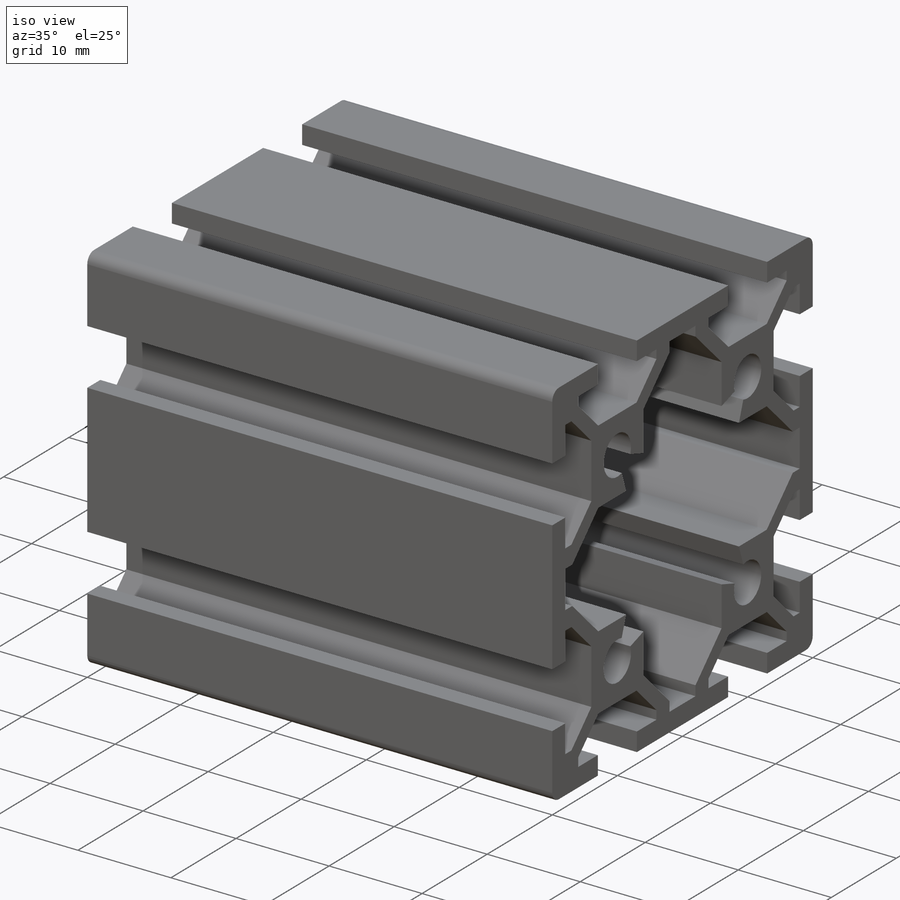
[diagram: iso view]
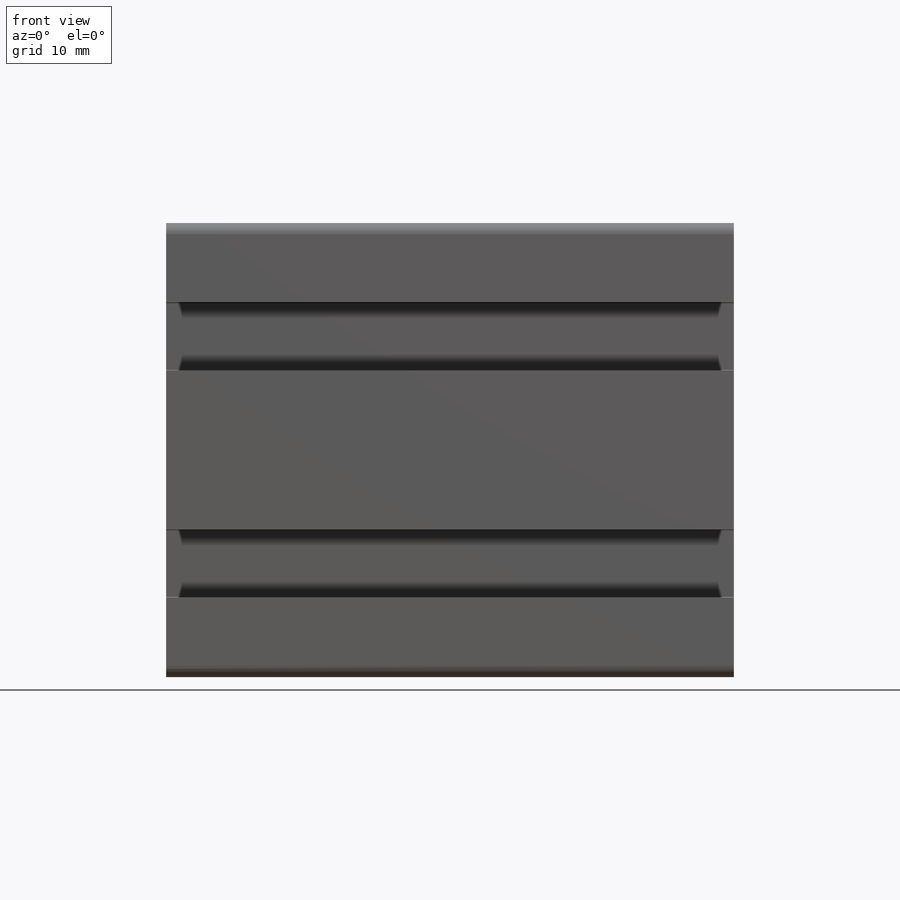
[diagram: front view]
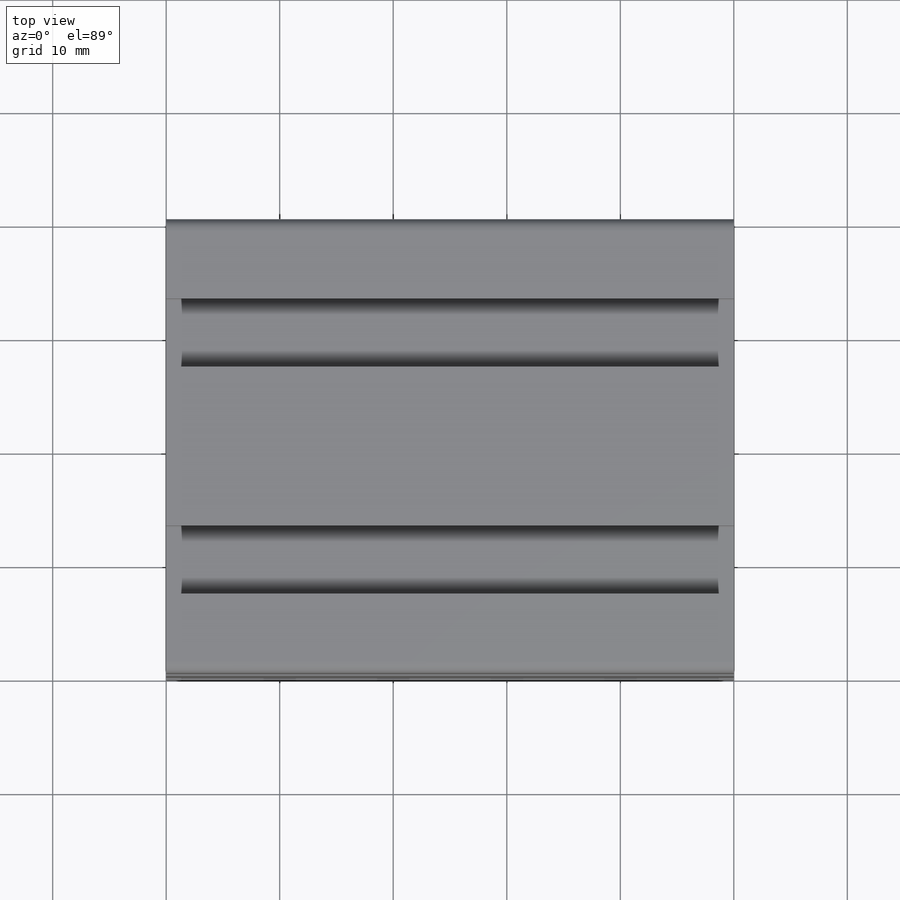
[diagram: top view]
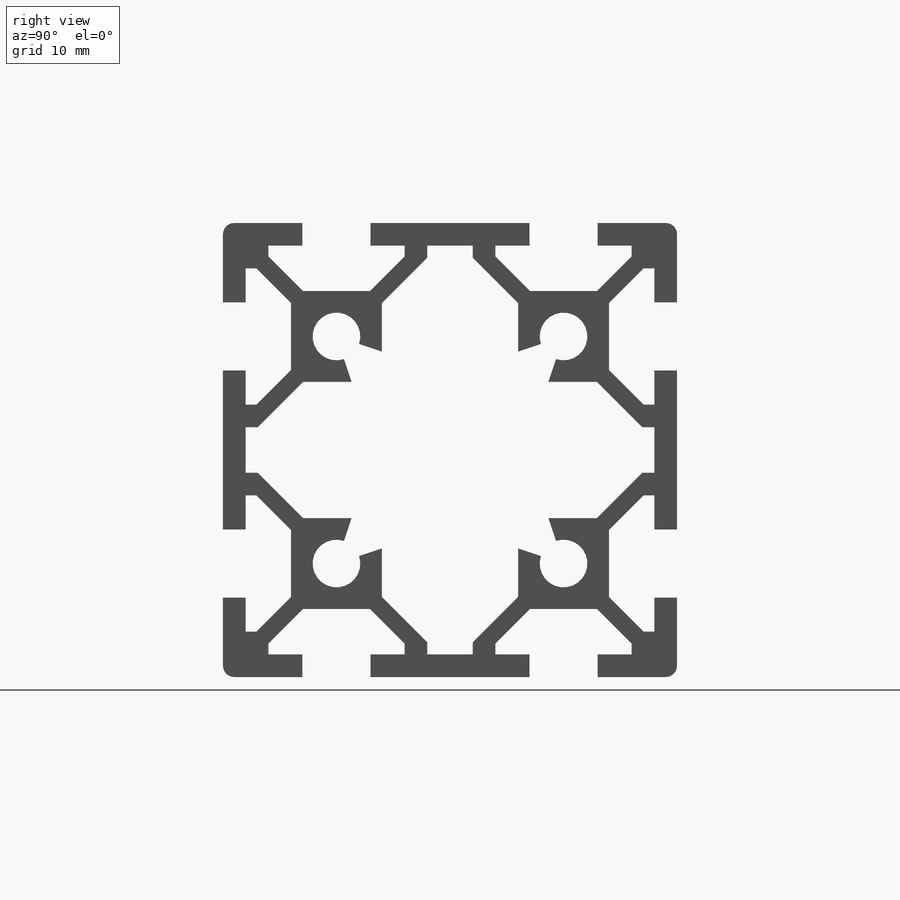
[diagram: right view]
SOLIDWORKS PART (.sldprt)
format: sldprt  version: not decoded by parser v0  size: 4,058,112 bytes
history: native  units: mm
features: sketch x97, cut_extrude x60, thread x48, plane x16, pattern_linear x12, cut_revolve x10, extrude x9, hole x8, material x1, chamfer x1 (+79 scaffold rows collapsed; 68 parser-record rows omitted)
feature tree (409):
  scaffold x79  (default folders/planes/origin — collapsed)
  material  "Material <not specified>"
  sketch  "Sketch1"  dims[c1.D3=4.2mm c1.A=30.0mm c1.B=30.0mm c2.A=30.0mm c2.B=30.0mm c3.A=30.0mm c3.B=30.0mm c3.D1=90.0mm c3.D2=90.0mm c3.D3=90.0mm c4.A=30.0mm c5.A=30.0mm c5.B=90.0mm c6.A=30.0mm c6.B=90.0mm c7.A=30.0mm c7.B=90.0mm c7.D1=83.2mm c7.D2=23.2mm c8.A=30.0mm c8.B=30.0mm c9.A=40.0mm c9.B=40.0mm c10.A=40.0mm c10.B=80.0mm c11.A=80.0mm c11.B=80.0mm c12.A=60.0mm c12.B=60.0mm c13.A=40.0mm c13.B=40.0mm]
  extrude  "Boss-Extrude1"  [1 undecoded]
  sketch  "Sketch2"  dims[A=40.0mm D1=~206.895348mm]
  sketch  "Sketch3"  dims[B=40.0mm D1=~204.200321mm]
  plane  "Plane1"  Offset=20mm FIX_1=20mm
  plane  "Plane2"  Offset=20mm FIX_2=20mm
  plane  "Plane3"  Offset=0mm FIX_3=0mm
  plane  "Plane4"
  plane  "Plane5"  Offset=20mm FIX_4=20mm
  plane  "Plane6"  Offset=20mm FIX_5=20mm
  plane  "Plane7"  Offset=20mm XA=20mm
  plane  "Plane8"  Offset=45mm XB=45mm
  plane  "Plane9"  Offset=70mm XC=70mm
  plane  "Plane10"  Offset=95mm XD=95mm
  plane  "Plane11"  Offset=120mm XE=120mm
  plane  "Plane12"  Offset=20mm YA=20mm
  plane  "Plane13"  Offset=45mm YB=45mm
  plane  "Plane14"  Offset=70mm YC=70mm
  plane  "Plane15"  Offset=95mm YD=95mm
  plane  "Plane16"  Offset=120mm YE=120mm
  parser-record x68  (decoder bookkeeping rows leaked as tree rows — omitted from the tree; the rows remain in map.json)
  chamfer  "Chamfer1"  Distance=0.3mm Angle=45deg FIX_6=0.3mm FIX_7=45deg
  sketch  "Sketch4"  dims[c1.FIX_8=10.0mm c2.FIX_8=4.2mm c2.FIX_9=30.0mm c2.FIX_10=30.0mm c3.FIX_9=10.0mm c3.FIX_10=20.0mm c3.FIX_11=10.0mm c3.FIX_12=20.0mm]
  extrude  "Boss-Extrude2"  Depth=15mm FIX_13=15mm
  hole  "Tapped Hole1"  Diameter=4.2mm Depth=15mm
  sketch  "Sketch6"  dims[FIX_14=20.0mm FIX_15=20.0mm FIX_16=10.0mm]
  sketch  "Sketch5"  dims[hole-wizard template sketch: 61 standard entries collapsed; hole parameters above]
  thread  "Hole Thread1"  Diameter=15mm NFIX_2=15mm NFIX_1=5mm  [1 undecoded]
  thread  "Hole Thread2"  Diameter=15mm NFIX_2=15mm NFIX_1=5mm  [1 undecoded]
  thread  "Hole Thread3"  Diameter=15mm NFIX_2=15mm NFIX_1=5mm  [1 undecoded]
  thread  "Hole Thread4"  Diameter=15mm NFIX_2=15mm NFIX_1=5mm  [1 undecoded]
  sketch  "Sketch7"  dims[FIX_17=4.2mm FIX_15=30.0mm FIX_16=30.0mm FIX_18=10.0mm FIX_19=20.0mm FIX_20=20.0mm FIX_21=10.0mm]
  extrude  "Boss-Extrude3"  Depth=15mm FIX_22=15mm
  hole  "Tapped Hole2"  Diameter=4.2mm Depth=15mm
  sketch  "Sketch9"  dims[FIX_23=20.0mm FIX_24=10.0mm FIX_25=20.0mm]
  sketch  "Sketch8"  dims[hole-wizard template sketch: 61 standard entries collapsed; hole parameters above]
  thread  "Hole Thread5"  Diameter=15mm NFIX_2=15mm NFIX_1=5mm  [1 undecoded]
  thread  "Hole Thread6"  Diameter=15mm NFIX_2=15mm NFIX_1=5mm  [1 undecoded]
  thread  "Hole Thread7"  Diameter=15mm NFIX_2=15mm NFIX_1=5mm  [1 undecoded]
  thread  "Hole Thread8"  Diameter=15mm NFIX_2=15mm NFIX_1=5mm  [1 undecoded]
  sketch  "Sketch10"  dims[FIX_26=4.2mm FIX_21=30.0mm FIX_22=30.0mm FIX_27=10.0mm FIX_28=20.0mm FIX_29=20.0mm FIX_30=10.0mm]
  extrude  "Boss-Extrude4"  Depth=15mm FIX_31=15mm
  sketch  "Sketch11"  dims[FIX_32=4.2mm FIX_25=30.0mm FIX_26=30.0mm FIX_33=20.0mm FIX_34=20.0mm FIX_35=10.0mm FIX_36=10.0mm]
  extrude  "Boss-Extrude5"  Depth=15mm FIX_37=15mm
  hole  "Tapped Hole3"  Diameter=4.2mm Depth=15mm
  sketch  "Sketch13"  dims[FIX_38=20.0mm D2=40.0mm D3=~14.267346mm FIX_39=20.0mm FIX_40=10.0mm]
  sketch  "Sketch12"  dims[hole-wizard template sketch: 61 standard entries collapsed; hole parameters above]
  thread  "Hole Thread9"  Diameter=15mm NFIX_2=15mm NFIX_1=5mm  [1 undecoded]
  thread  "Hole Thread10"  Diameter=15mm NFIX_2=15mm NFIX_1=5mm  [1 undecoded]
  thread  "Hole Thread11"  Diameter=15mm NFIX_2=15mm NFIX_1=5mm  [1 undecoded]
  thread  "Hole Thread12"  Diameter=15mm NFIX_2=15mm NFIX_1=5mm  [1 undecoded]
  hole  "Tapped Hole4"  Diameter=4.2mm Depth=15mm
  sketch  "Sketch15"  dims[FIX_41=20.0mm FIX_42=20.0mm FIX_43=10.0mm]
  sketch  "Sketch14"  dims[hole-wizard template sketch: 61 standard entries collapsed; hole parameters above]
  thread  "Hole Thread13"  Diameter=15mm NFIX_2=15mm NFIX_1=5mm  [1 undecoded]
  thread  "Hole Thread14"  Diameter=15mm NFIX_2=15mm NFIX_1=5mm  [1 undecoded]
  thread  "Hole Thread15"  Diameter=15mm NFIX_2=15mm NFIX_1=5mm  [1 undecoded]
  thread  "Hole Thread16"  Diameter=15mm NFIX_2=15mm NFIX_1=5mm  [1 undecoded]
  sketch  "Sketch16"  dims[FIX_44=4.2mm FIX_33=30.0mm FIX_34=30.0mm FIX_45=20.0mm FIX_46=10.0mm FIX_47=20.0mm FIX_48=10.0mm]
  extrude  "Boss-Extrude6"  Depth=6mm FIX_49=6mm
  hole  "Tapped Hole5"  Diameter=2.5mm Depth=6mm
  sketch  "Sketch18"  dims[FIX_50=10.0mm FIX_51=20.0mm FIX_52=20.0mm]
  sketch  "Sketch17"  dims[hole-wizard template sketch: 61 standard entries collapsed; hole parameters above]
  thread  "Hole Thread17"  Diameter=6mm NFIX_2=6mm NFIX_1=3mm  [1 undecoded]
  thread  "Hole Thread18"  Diameter=6mm NFIX_2=6mm NFIX_1=3mm  [1 undecoded]
  thread  "Hole Thread19"  Diameter=6mm NFIX_2=6mm NFIX_1=3mm  [1 undecoded]
  thread  "Hole Thread20"  Diameter=6mm NFIX_2=6mm NFIX_1=3mm  [1 undecoded]
  thread  "ThreadA"  Diameter=4.2mm NFIX_1=4.2mm  [1 undecoded]
  thread  "ThreadB"  Diameter=4.2mm NFIX_1=4.2mm  [1 undecoded]
  thread  "ThreadC"  Diameter=4.2mm NFIX_1=4.2mm  [1 undecoded]
  thread  "ThreadD"  Diameter=4.2mm NFIX_1=4.2mm  [1 undecoded]
  sketch  "Sketch19"  dims[FIX_53=4.2mm FIX_39=30.0mm FIX_40=30.0mm FIX_54=20.0mm FIX_55=20.0mm FIX_56=10.0mm FIX_57=10.0mm]
  extrude  "Boss-Extrude7"  Depth=6mm FIX_58=6mm
  hole  "Tapped Hole6"  Diameter=2.5mm Depth=6mm
  sketch  "Sketch21"  dims[FIX_59=20.0mm FIX_60=20.0mm FIX_61=10.0mm]
  sketch  "Sketch20"  dims[hole-wizard template sketch: 61 standard entries collapsed; hole parameters above]
  thread  "Hole Thread21"  Diameter=6mm NFIX_2=6mm NFIX_1=3mm  [1 undecoded]
  thread  "Hole Thread22"  Diameter=6mm NFIX_2=6mm NFIX_1=3mm  [1 undecoded]
  thread  "Hole Thread23"  Diameter=6mm NFIX_2=6mm NFIX_1=3mm  [1 undecoded]
  thread  "Hole Thread24"  Diameter=6mm NFIX_2=6mm NFIX_1=3mm  [1 undecoded]
  thread  "ThreadE"  Diameter=4.2mm NFIX_1=4.2mm  [1 undecoded]
  thread  "ThreadF"  Diameter=4.2mm NFIX_1=4.2mm  [1 undecoded]
  thread  "ThreadG"  Diameter=4.2mm NFIX_1=4.2mm  [1 undecoded]
  thread  "ThreadH"  Diameter=4.2mm NFIX_1=4.2mm  [1 undecoded]
  sketch  "Sketch22"  dims[FIX_62=4.2mm FIX_45=30.0mm FIX_46=30.0mm FIX_63=20.0mm FIX_64=10.0mm FIX_65=20.0mm FIX_66=10.0mm]
  extrude  "Boss-Extrude8"  Depth=6mm FIX_67=6mm
  sketch  "Sketch23"  dims[FIX_68=4.2mm FIX_49=30.0mm FIX_50=30.0mm FIX_69=20.0mm FIX_70=10.0mm FIX_71=10.0mm FIX_72=20.0mm]
  extrude  "Boss-Extrude9"  Depth=6mm FIX_73=6mm
  hole  "Tapped Hole7"  Diameter=2.5mm Depth=6mm
  sketch  "Sketch25"  dims[FIX_74=20.0mm FIX_75=20.0mm FIX_76=10.0mm]
  sketch  "Sketch24"  dims[hole-wizard template sketch: 61 standard entries collapsed; hole parameters above]
  thread  "Hole Thread25"  Diameter=6mm NFIX_2=6mm NFIX_1=3mm  [1 undecoded]
  thread  "Hole Thread26"  Diameter=6mm NFIX_2=6mm NFIX_1=3mm  [1 undecoded]
  thread  "Hole Thread27"  Diameter=6mm NFIX_2=6mm NFIX_1=3mm  [1 undecoded]
  thread  "Hole Thread28"  Diameter=6mm NFIX_2=6mm NFIX_1=3mm  [1 undecoded]
  thread  "ThreadI"  Diameter=4.2mm NFIX_1=4.2mm  [1 undecoded]
  thread  "ThreadJ"  Diameter=4.2mm  [1 undecoded]
  thread  "ThreadK"  Diameter=4.2mm NFIX_1=4.2mm  [1 undecoded]
  thread  "ThreadL"  Diameter=4.2mm NFIX_1=4.2mm  [1 undecoded]
  hole  "Tapped Hole8"  Diameter=2.5mm Depth=6mm
  sketch  "Sketch27"  dims[FIX_77=20.0mm FIX_78=20.0mm FIX_79=10.0mm]
  sketch  "Sketch26"  dims[hole-wizard template sketch: 61 standard entries collapsed; hole parameters above]
  thread  "Hole Thread29"  Diameter=6mm NFIX_2=6mm NFIX_1=3mm  [1 undecoded]
  thread  "Hole Thread30"  Diameter=6mm NFIX_2=6mm NFIX_1=3mm  [1 undecoded]
  thread  "Hole Thread31"  Diameter=6mm NFIX_2=6mm NFIX_1=3mm  [1 undecoded]
  thread  "Hole Thread32"  Diameter=6mm NFIX_2=6mm NFIX_1=3mm  [1 undecoded]
  thread  "ThreadM"  Diameter=4.2mm NFIX_1=4.2mm  [1 undecoded]
  thread  "ThreadN"  Diameter=4.2mm NFIX_1=4.2mm  [1 undecoded]
  thread  "ThreadO"  Diameter=4.2mm NFIX_1=4.2mm  [1 undecoded]
  thread  "ThreadP"  Diameter=4.2mm NFIX_1=4.2mm  [1 undecoded]
  sketch  "Sketch28"
  cut_extrude  "Cut-Extrude1"  Depth=40mm A=40mm
  sketch  "Sketch29"
  cut_extrude  "Cut-Extrude2"  Depth=40mm A=40mm
  sketch  "Sketch30"
  cut_extrude  "Cut-Extrude3"  Depth=40mm B=40mm
  sketch  "Sketch31"
  cut_extrude  "Cut-Extrude4"  Depth=40mm B=40mm
  sketch  "Sketch32"
  cut_extrude  "Cut-Extrude5"  Depth=40mm A=40mm
  sketch  "Sketch33"
  cut_extrude  "Cut-Extrude6"  Depth=40mm A=40mm
  sketch  "Sketch34"
  cut_extrude  "Cut-Extrude7"  Depth=40mm B=40mm
  sketch  "Sketch35"
  cut_extrude  "Cut-Extrude8"  Depth=40mm B=40mm
  sketch  "Sketch36"  dims[D3_s=7.35mm H=20.0mm FIX_80=20.0mm H_Hole L=10.0mm FIX_81=10.0mm]
  cut_extrude  "Cut-Extrude9"  Depth=40mm A=40mm
  sketch  "Sketch37"  dims[c1.D_s=5.0mm c1.D3_s=7.35mm c1.H=15.0mm c1.FIX_59=30.0mm c1.FIX_60=30.0mm c1.J=30.0mm c2.H=15.0mm c2.FIX_61=15.0mm c3.H=15.0mm c3.J=20.0mm c4.H=15.0mm c5.H=20.0mm c5.H_Hole L=10.0mm c5.FIX_82=10.0mm c5.FIX_83=20.0mm]
  cut_extrude  "Cut-Extrude10"  Depth=40mm A=40mm
  sketch  "Sketch38"  dims[c1.D_s=5.0mm c1.D3_s=7.35mm c1.H=15.0mm c1.FIX_62=30.0mm c1.FIX_63=30.0mm c1.J=30.0mm c1.K=30.0mm c1.FIX_64=15.0mm c2.H=15.0mm c2.J=20.0mm c2.K=20.0mm c3.H=15.0mm c4.H=20.0mm c4.H_Hole L=10.0mm c4.FIX_84=10.0mm c4.FIX_85=20.0mm]
  cut_extrude  "Cut-Extrude11"  Depth=40mm A=40mm
  sketch  "Sketch39"  dims[D3_s=7.35mm H=20.0mm H_Hole L=10.0mm FIX_86=10.0mm FIX_87=20.0mm]
  cut_extrude  "Cut-Extrude12"  Depth=40mm B=40mm
  sketch  "Sketch40"  dims[c1.D3_s=7.35mm c1.H=15.0mm c1.J=20.0mm c2.H=20.0mm c2.H_Hole L=10.0mm c2.FIX_88=10.0mm c2.FIX_89=20.0mm]
  cut_extrude  "Cut-Extrude13"  Depth=40mm B=40mm
  sketch  "Sketch41"  dims[D3_s=7.35mm H_Hole L=10.0mm J=20.0mm K=20.0mm FIX_90=20.0mm FIX_91=10.0mm]
  cut_extrude  "Cut-Extrude14"  Depth=40mm B=40mm
  sketch  "Sketch42"  dims[c1.D_s=5.0mm c1.D3_s=7.35mm c1.H=15.0mm c1.FIX_65=30.0mm c1.FIX_66=30.0mm c1.FIX_67=15.0mm c2.H=15.0mm c3.H=20.0mm c3.H_Hole L=10.0mm c3.FIX_92=10.0mm c3.FIX_93=20.0mm]
  cut_extrude  "Cut-Extrude15"  Depth=40mm A=40mm
  sketch  "Sketch43"  dims[D3_s=7.35mm H=20.0mm H_Hole L=10.0mm FIX_94=10.0mm FIX_95=20.0mm]
  cut_extrude  "Cut-Extrude16"  Depth=40mm B=40mm
  sketch  "Sketch44"  dims[c1.D_s=5.0mm c1.D3_s=7.35mm c1.H=15.0mm c1.FIX_68=30.0mm c1.FIX_69=30.0mm c1.J=30.0mm c2.H=15.0mm c2.FIX_70=15.0mm c3.H=15.0mm c3.J=20.0mm c4.H=20.0mm c5.H=20.0mm c6.H=20.0mm c6.H_Hole L=10.0mm c6.FIX_96=10.0mm c6.FIX_97=20.0mm]
  cut_extrude  "Cut-Extrude17"  Depth=40mm A=40mm
  sketch  "Sketch45"  dims[c1.D3_s=7.35mm c1.H=15.0mm c1.J=20.0mm c2.H=15.0mm c3.H=20.0mm c4.H=20.0mm c4.H_Hole L=10.0mm c4.FIX_98=10.0mm c4.FIX_99=20.0mm]
  cut_extrude  "Cut-Extrude18"  Depth=40mm B=40mm
  sketch  "Sketch46"  dims[c1.D_s=5.0mm c1.D3_s=7.35mm c1.H=15.0mm c1.FIX_71=30.0mm c1.FIX_72=30.0mm c1.J=30.0mm c1.K=30.0mm c1.FIX_73=15.0mm c2.H=20.0mm c2.J=20.0mm c2.K=20.0mm c2.FIX_100=20.0mm c2.FIX_101=10.0mm c2.H_Hole L=10.0mm]
  cut_extrude  "Cut-Extrude19"  Depth=40mm A=40mm
  sketch  "Sketch47"  dims[D3_s=7.35mm H_Hole L=10.0mm J=20.0mm K=20.0mm FIX_102=20.0mm FIX_103=10.0mm]
  cut_extrude  "Cut-Extrude20"  Depth=40mm B=40mm
  sketch  "Sketch48"  dims[D_s=5.0mm D3_s=7.35mm H=15.0mm FIX_74=30.0mm FIX_75=30.0mm H_Hole R=10.0mm FIX_76=15.0mm FIX_104=10.0mm FIX_105=20.0mm]
  cut_extrude  "Cut-Extrude21"  Depth=40mm A=40mm
  sketch  "Sketch49"  dims[c1.D_s=5.0mm c1.D3_s=7.35mm c1.H=15.0mm c1.FIX_77=30.0mm c1.FIX_78=30.0mm c1.J=30.0mm c1.H_Hole R=10.0mm c1.FIX_79=15.0mm c2.J=20.0mm c2.FIX_106=10.0mm c2.FIX_107=20.0mm]
  cut_extrude  "Cut-Extrude22"  Depth=40mm A=40mm
  sketch  "Sketch50"  dims[c1.D_s=5.0mm c1.D3_s=7.35mm c1.H=15.0mm c1.FIX_80=30.0mm c1.FIX_81=30.0mm c1.J=30.0mm c1.K=30.0mm c1.FIX_82=15.0mm c1.H_Hole R=10.0mm c2.J=20.0mm c2.K=20.0mm c2.FIX_108=20.0mm c2.FIX_109=10.0mm]
  cut_extrude  "Cut-Extrude23"  Depth=40mm A=40mm
  sketch  "Sketch51"  dims[D3_s=7.35mm H_Hole R=10.0mm FIX_110=20.0mm FIX_111=10.0mm]
  cut_extrude  "Cut-Extrude24"  Depth=40mm B=40mm
  sketch  "Sketch52"  dims[D3_s=7.35mm J=20.0mm H_Hole R=10.0mm FIX_112=10.0mm FIX_113=20.0mm]
  cut_extrude  "Cut-Extrude25"  Depth=40mm B=40mm
  sketch  "Sketch53"  dims[D3_s=7.35mm H_Hole R=10.0mm J=20.0mm K=20.0mm FIX_114=20.0mm FIX_115=10.0mm]
  cut_extrude  "Cut-Extrude26"  Depth=40mm B=40mm
  sketch  "Sketch54"  dims[c1.D_s=5.0mm c2.D_s=5.0mm c2.D3_s=7.35mm c2.H=15.0mm c2.FIX_83=30.0mm c2.FIX_84=30.0mm c2.FIX_85=15.0mm c2.H_Hole R=10.0mm c2.FIX_116=20.0mm c2.FIX_117=10.0mm]
  cut_extrude  "Cut-Extrude27"  Depth=40mm A=40mm
  sketch  "Sketch55"  dims[D3_s=7.35mm H_Hole R=10.0mm FIX_118=10.0mm FIX_119=20.0mm]
  cut_extrude  "Cut-Extrude28"  Depth=40mm B=40mm
  sketch  "Sketch56"  dims[D3_s=7.35mm H_Hole R=10.0mm J=20.0mm FIX_120=20.0mm FIX_121=10.0mm]
  cut_extrude  "Cut-Extrude29"  Depth=40mm A=40mm
  sketch  "Sketch57"  dims[D3_s=7.35mm H_Hole R=10.0mm J=20.0mm FIX_122=20.0mm FIX_123=10.0mm]
  cut_extrude  "Cut-Extrude30"  Depth=40mm B=40mm
  sketch  "Sketch58"  dims[c1.D_s=5.0mm c1.D3_s=7.35mm c1.H=15.0mm c1.FIX_89=30.0mm c1.FIX_90=30.0mm c1.J=30.0mm c1.K=30.0mm c1.FIX_91=15.0mm c1.H_Hole R=10.0mm c2.J=20.0mm c2.K=20.0mm c2.FIX_124=10.0mm c2.FIX_125=20.0mm]
  cut_extrude  "Cut-Extrude31"  Depth=40mm A=40mm
  sketch  "Sketch59"  dims[D3_s=7.35mm H_Hole R=10.0mm J=20.0mm K=20.0mm FIX_126=20.0mm FIX_127=10.0mm]
  cut_extrude  "Cut-Extrude32"  Depth=40mm B=40mm
  sketch  "Sketch60"  dims[c1.D_s=5.0mm c1.D3_s=7.35mm c1.AH=10.0mm c1.FIX_92=30.0mm c1.FIX_93=30.0mm c1.FIX_94=15.0mm c2.AH=10.0mm c3.AH=10.0mm c4.AH=10.0mm c4.FIX_128=10.0mm c4.FIX_129=20.0mm]
  cut_extrude  "Cut-Extrude33"  Depth=40mm A=40mm
  sketch  "Sketch61"  dims[c1.D_s=5.0mm c1.D3_s=7.35mm c1.BH=20.0mm c1.FIX_95=30.0mm c1.FIX_96=30.0mm c2.BH=20.0mm c2.FIX_97=15.0mm c3.BH=20.0mm c4.BH=20.0mm c4.FIX_130=10.0mm c4.FIX_131=20.0mm]
  cut_extrude  "Cut-Extrude34"  Depth=40mm A=40mm
  sketch  "Sketch62"  dims[c1.D_s=5.0mm c1.D3_s=7.35mm c1.CH=30.0mm c1.FIX_98=30.0mm c1.FIX_99=30.0mm c1.FIX_100=15.0mm c2.CH=30.0mm c3.CH=30.0mm c4.CH=30.0mm c4.FIX_132=10.0mm c4.FIX_133=20.0mm]
  cut_extrude  "Cut-Extrude35"  Depth=40mm A=40mm
  sketch  "Sketch63"  dims[c1.D_s=5.0mm c1.D3_s=7.35mm c1.DH=40.0mm c1.FIX_101=30.0mm c1.FIX_102=30.0mm c1.FIX_103=15.0mm c2.DH=40.0mm c2.FIX_134=10.0mm c2.FIX_135=20.0mm]
  cut_extrude  "Cut-Extrude36"  Depth=40mm A=40mm
  sketch  "Sketch64"  dims[c1.D_s=5.0mm c1.D3_s=7.35mm c1.EH=50.0mm c1.FIX_104=30.0mm c1.FIX_105=30.0mm c1.FIX_106=15.0mm c2.EH=50.0mm c2.FIX_136=10.0mm c2.FIX_137=20.0mm]
  cut_extrude  "Cut-Extrude37"  Depth=40mm A=40mm
  sketch  "Sketch65"  dims[c1.D3_s=7.35mm c1.AV=10.0mm c2.AV=10.0mm c2.FIX_138=10.0mm c2.FIX_139=20.0mm]
  cut_extrude  "Cut-Extrude38"  Depth=40mm B=40mm
  sketch  "Sketch66"  dims[c1.D3_s=7.35mm c1.BV=20.0mm c2.BV=20.0mm c2.FIX_140=20.0mm c2.FIX_141=10.0mm]
  cut_extrude  "Cut-Extrude39"  Depth=40mm B=40mm
  sketch  "Sketch67"  dims[c1.D3_s=7.35mm c1.CV=30.0mm c2.CV=30.0mm c2.FIX_142=20.0mm c2.FIX_143=10.0mm]
  cut_extrude  "Cut-Extrude40"  Depth=40mm B=40mm
  sketch  "Sketch68"  dims[c1.D3_s=7.35mm c1.DV=40.0mm c2.DV=40.0mm c2.FIX_144=10.0mm c2.FIX_145=20.0mm]
  cut_extrude  "Cut-Extrude41"  Depth=40mm B=40mm
  sketch  "Sketch69"  dims[c1.D3_s=7.35mm c1.EV=50.0mm c2.EV=50.0mm c2.FIX_146=10.0mm c2.FIX_147=20.0mm]
  cut_extrude  "Cut-Extrude42"  Depth=40mm B=40mm
  sketch  "Sketch70"  dims[c1.D_s=5.0mm c1.D3_s=7.35mm c1.AP=10.0mm c1.FIX_107=30.0mm c1.FIX_108=30.0mm c1.D3=30.0mm c1.FIX_109=15.0mm c2.AP=10.0mm c3.AP=10.0mm c4.AP=10.0mm c4.FIX_148=10.0mm c4.FIX_149=20.0mm]
  cut_extrude  "Cut-Extrude43"  Depth=40mm A=40mm
  sketch  "Sketch71"  dims[c1.D3_s=7.35mm c1.AP=10.0mm c2.AP=10.0mm c2.FIX_150=20.0mm c2.FIX_151=10.0mm]
  cut_extrude  "Cut-Extrude44"  Depth=40mm B=40mm
  sketch  "Sketch72"  dims[c1.D_s=5.0mm c1.D3_s=7.35mm c1.BP=20.0mm c1.FIX_110=30.0mm c1.FIX_111=30.0mm c1.FIX_112=15.0mm c2.BP=20.0mm c3.BP=20.0mm c4.BP=20.0mm c4.FIX_152=10.0mm c4.FIX_153=20.0mm]
  cut_extrude  "Cut-Extrude45"  Depth=40mm A=40mm
  sketch  "Sketch73"  dims[c1.D3_s=7.35mm c1.BP=20.0mm c2.BP=20.0mm c2.FIX_154=10.0mm c2.FIX_155=20.0mm]
  cut_extrude  "Cut-Extrude46"  Depth=40mm B=40mm
  sketch  "Sketch74"  dims[c1.D_s=5.0mm c1.D3_s=7.35mm c1.CP=30.0mm c1.FIX_113=30.0mm c1.FIX_114=30.0mm c1.FIX_115=15.0mm c2.CP=30.0mm c2.FIX_156=10.0mm c2.FIX_157=20.0mm]
  cut_extrude  "Cut-Extrude47"  Depth=40mm A=40mm
  sketch  "Sketch75"  dims[c1.D3_s=7.35mm c1.CP=30.0mm c2.CP=30.0mm c2.FIX_158=10.0mm c2.FIX_159=20.0mm]
  cut_extrude  "Cut-Extrude48"  Depth=40mm B=40mm
  sketch  "Sketch76"  dims[c1.D_s=5.0mm c2.D_s=5.0mm c2.D3_s=7.35mm c2.DP=40.0mm c2.FIX_116=30.0mm c2.FIX_117=30.0mm c3.DP=40.0mm c4.DP=40.0mm c5.DP=40.0mm c5.FIX_160=10.0mm c5.FIX_161=20.0mm]
  cut_extrude  "Cut-Extrude49"  Depth=40mm A=40mm
  sketch  "Sketch77"  dims[c1.D3_s=7.35mm c1.DP=40.0mm c2.DP=40.0mm c2.FIX_162=10.0mm c2.FIX_163=20.0mm]
  cut_extrude  "Cut-Extrude50"  Depth=40mm B=40mm
  sketch  "Sketch78"  dims[c1.D_s=5.0mm c2.D_s=5.0mm c3.D_s=5.0mm c3.D3_s=7.35mm c3.EP=50.0mm c4.EP=50.0mm c4.FIX_118=30.0mm c4.FIX_119=30.0mm c5.EP=50.0mm c6.EP=50.0mm c7.EP=50.0mm c7.FIX_164=10.0mm c7.FIX_165=20.0mm]
  cut_extrude  "Cut-Extrude51"  Depth=40mm A=40mm
  sketch  "Sketch79"  dims[c1.D3_s=7.35mm c1.EP=50.0mm c2.EP=50.0mm c2.FIX_166=10.0mm c2.FIX_167=20.0mm]
  cut_extrude  "Cut-Extrude52"  Depth=40mm B=40mm
  sketch  "Sketch80"  dims[B=40.0mm FIX_168=6.0mm D1_s=9.5mm D2_s=5.5mm FIX_169=10.0mm]
  cut_revolve  "Cut-Revolve1"  Angle=360deg FIX_170=360deg
  pattern_linear  "LPattern1"  Count1=2 Count2=1 Spacing1=20mm Spacing2=10mm FIX_172=2 FIX_171=20mm
  sketch  "Sketch81"  dims[D1_s=9.5mm D2_s=5.5mm FIX_173=6.0mm FIX_174=10.0mm B=40.0mm]
  cut_revolve  "Cut-Revolve2"  Angle=360deg FIX_175=360deg
  pattern_linear  "LPattern2"  Count1=2 Count2=1 Spacing1=20mm Spacing2=10mm FIX_177=2 FIX_176=20mm
  sketch  "Sketch82"  dims[D1_s=9.5mm D2_s=5.5mm B=40.0mm FIX_178=6.0mm FIX_179=10.0mm]
  cut_revolve  "Cut-Revolve3"  Angle=360deg FIX_180=360deg
  pattern_linear  "LPattern3"  Count1=2 Count2=1 Spacing1=20mm Spacing2=10mm FIX_182=2 FIX_181=20mm
  sketch  "Sketch83"  dims[D1_s=9.5mm D2_s=5.5mm B=40.0mm FIX_183=6.0mm FIX_184=10.0mm]
  cut_revolve  "Cut-Revolve4"  Angle=360deg FIX_185=360deg
  pattern_linear  "LPattern4"  Count1=2 Count2=1 Spacing1=20mm Spacing2=10mm FIX_187=2 FIX_186=20mm
  sketch  "Sketch84"  dims[D1_s=9.5mm D2_s=5.5mm B=40.0mm FIX_188=6.0mm FIX_189=10.0mm]
  cut_revolve  "Cut-Revolve5"  Angle=360deg FIX_190=360deg
  pattern_linear  "LPattern5"  Count1=2 Count2=1 Spacing1=20mm Spacing2=10mm FIX_192=2 FIX_191=20mm
  sketch  "Sketch85"  dims[D1_s=9.5mm D2_s=5.5mm FIX_193=6.0mm A=40.0mm FIX_194=10.0mm]
  cut_revolve  "Cut-Revolve6"  Angle=360deg FIX_195=360deg
  pattern_linear  "LPattern6"  Count1=2 Count2=1 Spacing1=20mm Spacing2=10mm FIX_197=2 FIX_196=20mm
  sketch  "Sketch86"  dims[A=40.0mm FIX_198=6.0mm D1_s=9.5mm D2_s=5.5mm FIX_199=10.0mm]
  cut_revolve  "Cut-Revolve7"  Angle=360deg FIX_200=360deg
  pattern_linear  "LPattern7"  Count1=2 Count2=1 Spacing1=20mm Spacing2=10mm FIX_202=2 FIX_201=20mm
  sketch  "Sketch87"  dims[D1._s=11.0mm D_s=6.5mm FIX_203=6.0mm A=40.0mm D3=20.0mm D1_s=9.5mm D2_s=5.5mm FIX_204=10.0mm]
  cut_revolve  "Cut-Revolve8"  Angle=360deg FIX_205=360deg
  pattern_linear  "LPattern8"  Count1=2 Count2=1 Spacing1=20mm Spacing2=10mm FIX_207=2 FIX_206=20mm
  sketch  "Sketch88"  dims[A=40.0mm D1_s=9.5mm D2_s=5.5mm FIX_208=6.0mm FIX_209=10.0mm]
  cut_revolve  "Cut-Revolve9"  Angle=360deg FIX_210=360deg
  pattern_linear  "LPattern9"  Count1=2 Count2=1 Spacing1=20mm Spacing2=10mm FIX_212=2 FIX_211=20mm
  sketch  "Sketch89"  dims[D1_s=9.5mm D2_s=5.5mm A=40.0mm FIX_213=10.0mm FIX_214=6.0mm]
  cut_revolve  "Cut-Revolve10"  Angle=360deg FIX_215=360deg
  pattern_linear  "LPattern10"  Count1=2 Count2=1 Spacing1=20mm Spacing2=10mm FIX_217=2 FIX_216=20mm
  sketch  "Sketch90"  dims[c1.D=7.1mm c1.H1=15.0mm c2.H1=10.0mm c2.FIX_191=15.0mm c2.FIX_192=60.0mm c2.FIX_218=20.0mm c2.FIX_219=10.0mm]
  cut_extrude  "Cut-Extrude53"  Depth=40mm A=40mm
  sketch  "Sketch91"  dims[D=7.1mm H1=10.0mm FIX_193=15.0mm FIX_194=60.0mm FIX_220=20.0mm FIX_221=10.0mm]
  cut_extrude  "Cut-Extrude54"  Depth=40mm A=40mm
  sketch  "Sketch92"  dims[c1.D=7.1mm c1.H1=20.0mm c2.H1=10.0mm c2.FIX_222=20.0mm c2.FIX_223=10.0mm]
  cut_extrude  "Cut-Extrude55"  Depth=40mm B=40mm
  sketch  "Sketch93"  dims[D=7.1mm H1=10.0mm FIX_224=20.0mm FIX_225=10.0mm]
  cut_extrude  "Cut-Extrude56"  Depth=40mm B=40mm
  sketch  "Sketch94"  dims[c1.D=7.1mm c1.FIX_123=16.0mm c1.FIX_124=30.0mm c1.D1=34.0mm c1.D2=30.0mm c1.FIX_195=30.0mm c1.FIX_196=16.0mm c1.FIX_56=16.0mm c2.D1=16.0mm c2.D2=20.0mm c2.KSS_1=19.0mm c2.FIX_226=10.0mm]
  cut_extrude  "Cut-Extrude57"  Depth=40mm A=40mm
  sketch  "Sketch95"  dims[D=7.1mm D2=13.1mm FIX_227=10.0mm FIX_228=20.0mm KSS_2=19.0mm]
  cut_extrude  "Cut-Extrude58"  Depth=20mm FIX_229=20mm
  pattern_linear  "LPattern11"  Count1=2 Count2=1 Spacing1=12mm Spacing2=50mm H=2 JLP=12mm
  sketch  "Sketch96"  dims[D=7.1mm KSS_3=19.0mm FIX_230=10.0mm]
  cut_extrude  "Cut-Extrude59"  Depth=40mm A=40mm
  sketch  "Sketch97"  dims[D=7.1mm KSS_4=19.0mm FIX_231=10.0mm FIX_232=20.0mm]
  cut_extrude  "Cut-Extrude60"  Depth=20mm FIX_233=20mm
  pattern_linear  "LPattern12"  Count1=2 Count2=1 Spacing1=12mm Spacing2=10mm H=2 KLP=12mm
decode coverage: 236 of 245 modeling features carry decoded parameters
note: ~ marks probable driven/reference dimensions
note: 49 parameter values undecoded
summary: Diameter pulled from absorbed wizard sketch
note: suppression state not decoded; provenance and decode notes live in map.json
